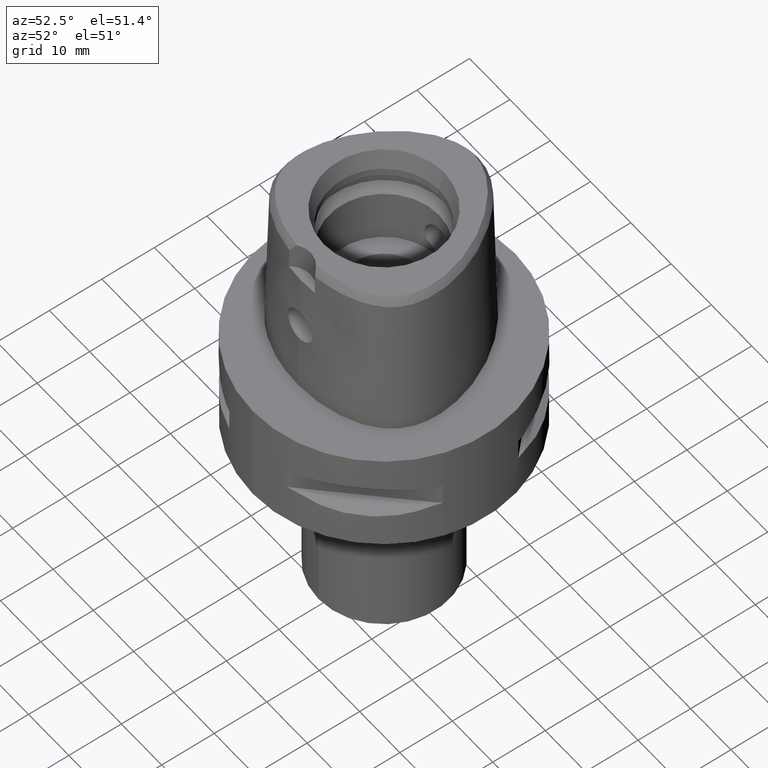
[diagram: clean part render]
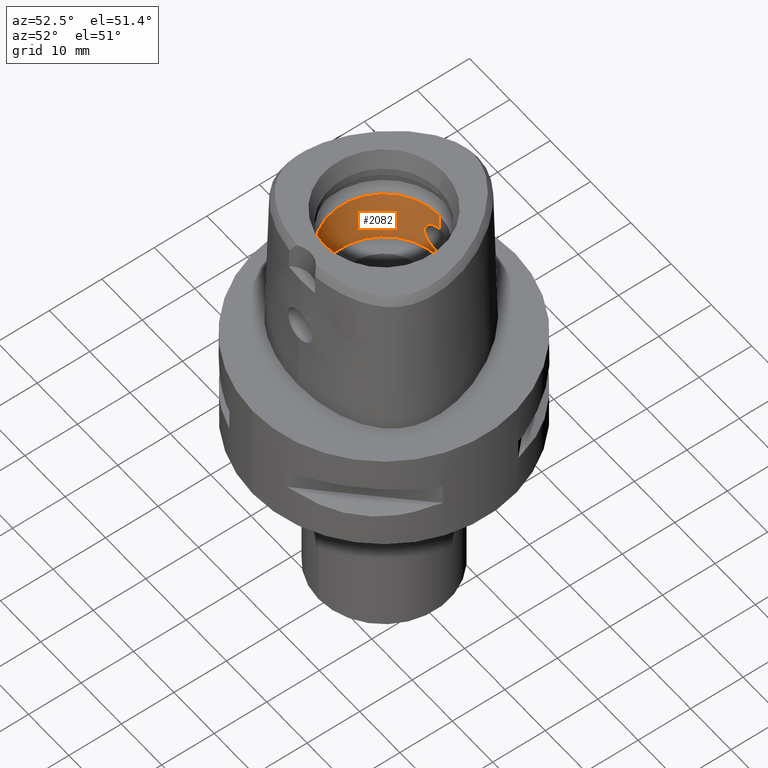
[diagram: same view with one face highlighted and labeled with its STEP entity id]
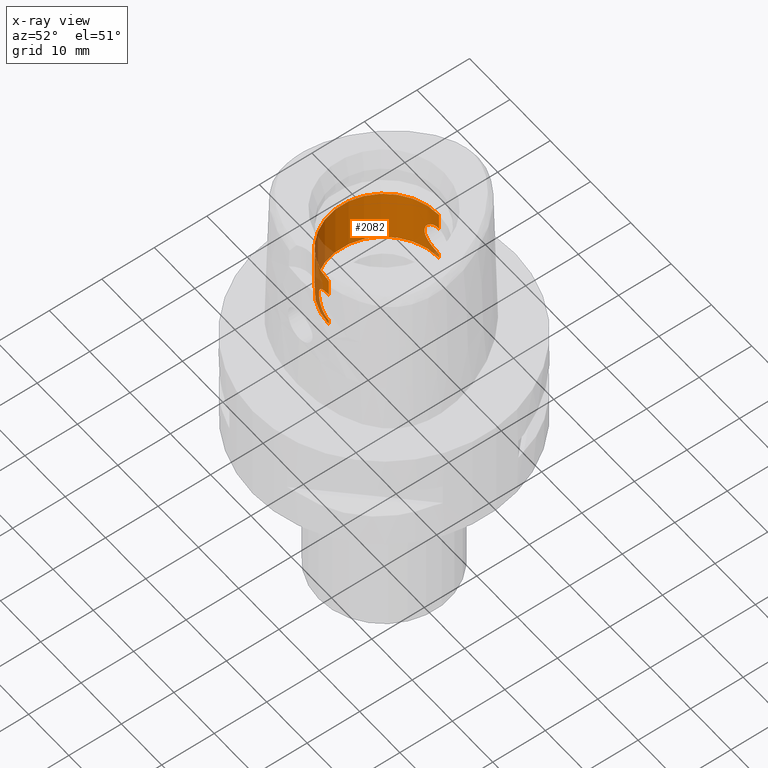
[diagram: x-ray of the same camera — body ghosted, the highlighted face saturated]
A machine part, auxiliary view. The second image highlights one B-rep face of the part: STEP entity #2082.
The next image is the same camera in x-ray: the body ghosted, the highlighted face saturated — about 11% of this face is hidden behind the body in this view.
In plain terms, the highlighted cylindrical surface (partial cylindrical patch) has radius 10.5 mm, axis along (0, 0, -1).
Its self-contained STEP definition (entity closure, byte-faithful):
#3 = CARTESIAN_POINT ( 'NONE',  ( -2.684273870985335986, -10.15195864715339802, 12.54945122235551125 ) ) ;
#30 = CARTESIAN_POINT ( 'NONE',  ( -2.892663343515185836, -10.09376140242067521, 14.96928986597794520 ) ) ;
#48 = CARTESIAN_POINT ( 'NONE',  ( -2.915525748083130697, -10.08721449241858004, 14.89706622754973253 ) ) ;
#70 = CARTESIAN_POINT ( 'NONE',  ( -2.225952381080567921, -10.26138731211384503, 16.08534015878506196 ) ) ;
#93 = CARTESIAN_POINT ( 'NONE',  ( -1.456012071754645421, 10.39810994055444660, 11.31857570852587358 ) ) ;
#101 = DIRECTION ( 'NONE',  ( 0.0000000000000000000, 0.0000000000000000000, -1.000000000000000000 ) ) ;
#115 = CARTESIAN_POINT ( 'NONE',  ( -2.056546944741850957, 10.29666187502723851, 16.25319287345646302 ) ) ;
#149 = ORIENTED_EDGE ( 'NONE', *, *, #4456, .F. ) ;
#201 = DIRECTION ( 'NONE',  ( 0.0000000000000000000, 0.0000000000000000000, 1.000000000000000000 ) ) ;
#216 = CARTESIAN_POINT ( 'NONE',  ( -1.105275461940272708, 10.44162784593458682, 16.84273724422178731 ) ) ;
#241 = CARTESIAN_POINT ( 'NONE',  ( -1.964279774045345706, 10.31445922619841049, 16.33406692924569370 ) ) ;
#270 = CARTESIAN_POINT ( 'NONE',  ( -2.708095606537817890, 10.14623527168673967, 12.58280299592427909 ) ) ;
#284 = ORIENTED_EDGE ( 'NONE', *, *, #3285, .T. ) ;
#328 = DIRECTION ( 'NONE',  ( 0.0000000000000000000, 0.0000000000000000000, 1.000000000000000000 ) ) ;
#363 = EDGE_CURVE ( 'NONE', #1139, #1223, #1788, .T. ) ;
#374 = CARTESIAN_POINT ( 'NONE',  ( -2.780929451129986241, -10.12520695583335595, 12.74729104128908297 ) ) ;
#398 = CARTESIAN_POINT ( 'NONE',  ( -1.172919099720751923, -10.43421154076973778, 16.81545390709915466 ) ) ;
#420 = CARTESIAN_POINT ( 'NONE',  ( -1.181153464950331911, -10.43328069739700759, 16.81200931892578510 ) ) ;
#441 = CARTESIAN_POINT ( 'NONE',  ( -2.809811383996468237, -10.11710176460692878, 12.81362283068346564 ) ) ;
#461 = CARTESIAN_POINT ( 'NONE',  ( -1.538922019475355008, 10.38604228523729667, 11.36469992290468056 ) ) ;
#463 = CARTESIAN_POINT ( 'NONE',  ( -2.846675885931348127, -10.10677677944793018, 15.09509080070503373 ) ) ;
#487 = CARTESIAN_POINT ( 'NONE',  ( -2.846602087479390253, 10.10679757081590857, 12.90471736839572081 ) ) ;
#511 = DIRECTION ( 'NONE',  ( 0.0000000000000000000, 1.000000000000000000, 0.0000000000000000000 ) ) ;
#531 = DIRECTION ( 'NONE',  ( 0.0000000000000000000, -1.000000000000000000, 0.0000000000000000000 ) ) ;
#559 = CARTESIAN_POINT ( 'NONE',  ( -1.279378724453281935, -10.42259964174019871, 11.22762073150358297 ) ) ;
#564 = AXIS2_PLACEMENT_3D ( 'NONE', #2407, #101, #2766 ) ;
#569 = FACE_OUTER_BOUND ( 'NONE', #1278, .T. ) ;
#579 = CARTESIAN_POINT ( 'NONE',  ( -2.780998949614430504, 10.12518807617360572, 15.25255471608938507 ) ) ;
#581 = DIRECTION ( 'NONE',  ( 0.0000000000000000000, 0.0000000000000000000, -1.000000000000000000 ) ) ;
#583 = CARTESIAN_POINT ( 'NONE',  ( -1.692405294285810546, -10.36221785919270566, 11.46062876547253495 ) ) ;
#600 = CARTESIAN_POINT ( 'NONE',  ( -3.034127993194745354, 10.05244008078223494, 13.63269152903868253 ) ) ;
#628 = CARTESIAN_POINT ( 'NONE',  ( -0.1858495358195028924, 10.50000000000000178, 17.05000000000000426 ) ) ;
#737 = CARTESIAN_POINT ( 'NONE',  ( 0.0000000000000000000, 10.50000000000000000, 17.05000000000000071 ) ) ;
#752 = CARTESIAN_POINT ( 'NONE',  ( -2.204592706791328016, -10.26598065842026841, 16.10794143929570765 ) ) ;
#792 = EDGE_CURVE ( 'NONE', #1670, #1148, #4640, .T. ) ;
#802 = CARTESIAN_POINT ( 'NONE',  ( -3.049378140335541332, -10.04754863259827324, 13.80405936455041171 ) ) ;
#822 = CARTESIAN_POINT ( 'NONE',  ( -2.204477518689910820, 10.26600544495524403, 11.89193818259084523 ) ) ;
#824 = CARTESIAN_POINT ( 'NONE',  ( -1.800158617137376238, -10.34500443447648266, 16.47068527536969995 ) ) ;
#829 = CARTESIAN_POINT ( 'NONE',  ( 0.0000000000000000000, -10.50000000000000000, 17.05000000000000071 ) ) ;
#845 = CARTESIAN_POINT ( 'NONE',  ( -2.349816740786623281, 10.23408308881572459, 12.05458284882629272 ) ) ;
#847 = CARTESIAN_POINT ( 'NONE',  ( -2.954680207953359172, -10.07604154423703235, 13.21771676435789367 ) ) ;
#874 = CARTESIAN_POINT ( 'NONE',  ( -1.302834613418593523, 10.41862899127401398, 11.24198199463796222 ) ) ;
#898 = CARTESIAN_POINT ( 'NONE',  ( 0.0000000000000000000, -10.50000000000000000, 10.94999999999999929 ) ) ;
#902 = DIRECTION ( 'NONE',  ( 0.0000000000000000000, 0.0000000000000000000, 1.000000000000000000 ) ) ;
#907 = EDGE_CURVE ( 'NONE', #1223, #2555, #2818, .T. ) ;
#979 = CARTESIAN_POINT ( 'NONE',  ( -1.063368221792931889, 10.44599833686672063, 16.85882790769428397 ) ) ;
#1000 = CARTESIAN_POINT ( 'NONE',  ( -2.101332103156799747, 10.28770260537483594, 16.21165340642846431 ) ) ;
#1049 = CARTESIAN_POINT ( 'NONE',  ( 0.0000000000000000000, -10.50000000000000000, 20.40000000000000213 ) ) ;
#1068 = VERTEX_POINT ( 'NONE', #3538 ) ;
#1125 = CARTESIAN_POINT ( 'NONE',  ( -3.031280128525303930, -10.05332210427071438, 13.60828202179935253 ) ) ;
#1139 = VERTEX_POINT ( 'NONE', #1389 ) ;
#1144 = CARTESIAN_POINT ( 'NONE',  ( -2.349916293469446860, -10.23406013784634361, 15.94529686807280910 ) ) ;
#1148 = VERTEX_POINT ( 'NONE', #2185 ) ;
#1163 = CARTESIAN_POINT ( 'NONE',  ( -0.3765717177538520644, -10.49999999999999645, 17.05000000000000071 ) ) ;
#1190 = CARTESIAN_POINT ( 'NONE',  ( -2.639873972684345649, -10.16387382276758977, 12.46911543568308112 ) ) ;
#1208 = CARTESIAN_POINT ( 'NONE',  ( -3.031301019161453780, 10.05331605589397448, 14.39155501958505390 ) ) ;
#1217 = CYLINDRICAL_SURFACE ( 'NONE', #564, 10.50000000000000000 ) ;
#1223 = VERTEX_POINT ( 'NONE', #829 ) ;
#1231 = CARTESIAN_POINT ( 'NONE',  ( -2.492383491375475657, 10.20096763433350873, 12.23823635763446482 ) ) ;
#1277 = CARTESIAN_POINT ( 'NONE',  ( -1.105220092079846284, -10.44163375783843151, 11.15724123430364578 ) ) ;
#1278 = EDGE_LOOP ( 'NONE', ( #149, #4246, #2913, #3274, #4512, #284, #2187, #3728 ) ) ;
#1326 = CARTESIAN_POINT ( 'NONE',  ( -2.896200294021661126, 10.09297322487315185, 14.97905627529126171 ) ) ;
#1349 = LINE ( 'NONE', #4284, #2628 ) ;
#1351 = CARTESIAN_POINT ( 'NONE',  ( -2.834891093780668392, 10.11009320629975505, 12.87486282578853114 ) ) ;
#1363 = B_SPLINE_CURVE_WITH_KNOTS ( 'NONE', 3,
 ( #4432, #628, #3530, #1950, #3045, #3224, #2292, #979, #216, #3754, #1702, #1371, #3552, #3430, #1737, #2679, #4493, #241, #115, #1000, #2466, #4616, #3810, #3200, #2070, #1555, #579, #3929, #2046, #3170, #4266, #2444, #2096, #1326, #1677, #1208, #4142, #1578, #600, #3406, #2708, #3783, #4650, #2809, #487, #3907, #1351, #3579, #2852, #270, #2832, #1231, #4285, #845, #1925, #4667, #2321, #822, #3068, #4167, #461, #93, #4516, #874, #2349, #4396, #2588, #2491, #4758, #2122, #1459, #1483, #4350 ),
 .UNSPECIFIED., .F., .F.,
 ( 4, 2, 2, 1, 1, 1, 2, 2, 2, 2, 2, 2, 2, 2, 2, 1, 1, 1, 2, 2, 2, 2, 2, 2, 1, 1, 1, 2, 2, 2, 2, 2, 2, 2, 2, 2, 2, 1, 1, 2, 2, 4 ),
 ( 0.0000000000000000000, 0.06249999999999510114, 0.09374999999999264477, 0.1093749999999914235, 0.1171874999999909794, 0.1210937499999907574, 0.1230468749999906464, 0.1249999999999905353, 0.1875000000000034972, 0.2187500000000099920, 0.2343750000000134892, 0.2500000000000169864, 0.3125000000000308642, 0.3437500000000375255, 0.3593750000000408562, 0.3671875000000422440, 0.3710937500000425215, 0.3730468750000426326, 0.3740234375000424105, 0.3750000000000421330, 0.4375000000000276446, 0.5000000000000131006, 0.5624999999999985567, 0.5937499999999913403, 0.6093749999999876765, 0.6171874999999855671, 0.6210937499999849010, 0.6230468749999844569, 0.6249999999999841238, 0.6874999999999834577, 0.7187499999999833467, 0.7343749999999832356, 0.7421874999999831246, 0.7499999999999830136, 0.8124999999999827915, 0.8437499999999827915, 0.8593749999999826805, 0.8671874999999826805, 0.8710937499999826805, 0.8730468749999829026, 0.8749999999999830136, 1.000000000000000000 ),
 .UNSPECIFIED. ) ;
#1371 = CARTESIAN_POINT ( 'NONE',  ( -1.142968579002704876, 10.43756783897918616, 16.82774516971084466 ) ) ;
#1389 = CARTESIAN_POINT ( 'NONE',  ( 0.0000000000000000000, -10.50000000000000000, 10.94999999999999929 ) ) ;
#1459 = CARTESIAN_POINT ( 'NONE',  ( -0.7764022866570564618, 10.47837665847388244, 11.02070152771540812 ) ) ;
#1470 = CARTESIAN_POINT ( 'NONE',  ( -2.804029235404124965, -10.11872136650691090, 12.79998046139980161 ) ) ;
#1483 = CARTESIAN_POINT ( 'NONE',  ( -0.3765564646010952643, 10.50000000000000178, 10.94999999999999929 ) ) ;
#1490 = CARTESIAN_POINT ( 'NONE',  ( -1.456064311620528073, -10.39810218278757326, 16.68139598706313009 ) ) ;
#1511 = CARTESIAN_POINT ( 'NONE',  ( -2.101228578943988623, -10.28772387848954573, 11.78824810961939562 ) ) ;
#1534 = CARTESIAN_POINT ( 'NONE',  ( -2.896144479331794752, -10.09298961028087760, 13.02077600036760963 ) ) ;
#1555 = CARTESIAN_POINT ( 'NONE',  ( -2.757688572005720040, 10.13171902664180379, 15.30347521573918534 ) ) ;
#1557 = CARTESIAN_POINT ( 'NONE',  ( -2.831792410213338052, -10.11096408904582766, 15.13290337306010613 ) ) ;
#1577 = CARTESIAN_POINT ( 'NONE',  ( -1.781647293763894968, -10.34743252364096833, 11.52178692218130607 ) ) ;
#1578 = CARTESIAN_POINT ( 'NONE',  ( -3.050579496421902181, 10.04719019360645405, 13.82374688555721498 ) ) ;
#1632 = CARTESIAN_POINT ( 'NONE',  ( -0.9070143053228508778, -10.46070026829730892, 11.08755224972813558 ) ) ;
#1670 = VERTEX_POINT ( 'NONE', #4344 ) ;
#1677 = CARTESIAN_POINT ( 'NONE',  ( -2.954723366597824530, 10.07602869749485741, 14.78211957462548121 ) ) ;
#1702 = CARTESIAN_POINT ( 'NONE',  ( -1.135161741994411111, 10.43841906629238458, 16.83089194383409293 ) ) ;
#1703 = AXIS2_PLACEMENT_3D ( 'NONE', #2785, #902, #511 ) ;
#1714 = DIRECTION ( 'NONE',  ( 0.0000000000000000000, 0.0000000000000000000, 1.000000000000000000 ) ) ;
#1737 = CARTESIAN_POINT ( 'NONE',  ( -1.692472663009719769, 10.36220651668209136, 16.53932658714942150 ) ) ;
#1758 = EDGE_CURVE ( 'NONE', #4191, #3109, #4039, .T. ) ;
#1788 = B_SPLINE_CURVE_WITH_KNOTS ( 'NONE', 3,
 ( #898, #2371, #3834, #2397, #2757, #1632, #2814, #4567, #1277, #4211, #2424, #3857, #559, #3429, #583, #1577, #2051, #3533, #2638, #1511, #2597, #3736, #1190, #3, #2962, #1857, #374, #3322, #1470, #441, #4410, #2273, #2216, #1534, #847, #1125, #802, #3345, #3364, #1904, #4071, #48, #30, #4098, #463, #3002, #3674, #1557, #3047, #3023, #4053, #4495, #3383, #1144, #2661, #3716, #70, #752, #4475, #824, #1882, #1490, #3693, #4120, #1927, #4451, #1836, #420, #398, #2294, #3408, #1163, #2984 ),
 .UNSPECIFIED., .F., .F.,
 ( 4, 2, 2, 1, 1, 1, 2, 2, 2, 2, 2, 2, 2, 2, 2, 1, 1, 1, 2, 2, 2, 2, 2, 2, 1, 1, 1, 2, 2, 2, 2, 2, 2, 2, 2, 2, 2, 1, 1, 2, 2, 4 ),
 ( 0.0000000000000000000, 0.06249999999999457378, 0.09374999999999181211, 0.1093749999999904660, 0.1171874999999897027, 0.1210937499999893141, 0.1230468749999892586, 0.1249999999999892031, 0.1874999999999883704, 0.2187499999999879818, 0.2343749999999875933, 0.2499999999999872324, 0.3124999999999859002, 0.3437499999999851785, 0.3593749999999848455, 0.3671874999999847899, 0.3710937499999850675, 0.3730468749999851785, 0.3740234374999852340, 0.3749999999999852895, 0.4374999999999887867, 0.4999999999999922284, 0.5624999999999956701, 0.5937499999999974465, 0.6093749999999984457, 0.6171874999999993339, 0.6210937499999995559, 0.6230468750000000000, 0.6250000000000003331, 0.6875000000000042188, 0.7187500000000061062, 0.7343750000000071054, 0.7421875000000072164, 0.7500000000000072164, 0.8125000000000072164, 0.8437500000000071054, 0.8593750000000073275, 0.8671875000000074385, 0.8710937500000072164, 0.8730468750000073275, 0.8750000000000075495, 1.000000000000000000 ),
 .UNSPECIFIED. ) ;
#1836 = CARTESIAN_POINT ( 'NONE',  ( -1.193581545972662195, -10.43186559282252190, 16.80677856584921770 ) ) ;
#1857 = CARTESIAN_POINT ( 'NONE',  ( -2.757620559869211618, -10.13173732089640566, 12.69638109964089345 ) ) ;
#1882 = CARTESIAN_POINT ( 'NONE',  ( -1.538977923302190076, -10.38603347469516969, 16.63526775599447305 ) ) ;
#1904 = CARTESIAN_POINT ( 'NONE',  ( -2.980254012824899768, -10.06844442467550849, 14.65587537912753646 ) ) ;
#1925 = CARTESIAN_POINT ( 'NONE',  ( -2.289531751188468078, 10.24750750704935598, 11.98468587755150949 ) ) ;
#1927 = CARTESIAN_POINT ( 'NONE',  ( -1.249319580917084949, -10.42526248511483011, 16.78246040569112552 ) ) ;
#1950 = CARTESIAN_POINT ( 'NONE',  ( -0.6656999691549065901, 10.47903802007259877, 16.97807790734272970 ) ) ;
#2019 = VECTOR ( 'NONE', #328, 1000.000000000000000 ) ;
#2046 = CARTESIAN_POINT ( 'NONE',  ( -2.804100611947927035, 10.11870175071666900, 15.19985276759124204 ) ) ;
#2051 = CARTESIAN_POINT ( 'NONE',  ( -1.918224794152140422, -10.32299703777817435, 11.62803026500928105 ) ) ;
#2070 = CARTESIAN_POINT ( 'NONE',  ( -2.740640197733970496, 10.13647392698816496, 15.33907476816065518 ) ) ;
#2082 = ADVANCED_FACE ( 'NONE', ( #569 ), #1217, .F. ) ;
#2096 = CARTESIAN_POINT ( 'NONE',  ( -2.814259360980289948, 10.11585803279736240, 15.17577846467583846 ) ) ;
#2122 = CARTESIAN_POINT ( 'NONE',  ( -1.170772073513500766, 10.43445424599896043, 11.18364848650615961 ) ) ;
#2185 = CARTESIAN_POINT ( 'NONE',  ( 0.0000000000000000000, 10.50000000000000000, 10.00000000000000000 ) ) ;
#2187 = ORIENTED_EDGE ( 'NONE', *, *, #907, .F. ) ;
#2216 = CARTESIAN_POINT ( 'NONE',  ( -2.814186587720505894, -10.11587815382454103, 12.82404736506404319 ) ) ;
#2273 = CARTESIAN_POINT ( 'NONE',  ( -2.813852684108442581, -10.11597153519743486, 12.82325133825336749 ) ) ;
#2292 = CARTESIAN_POINT ( 'NONE',  ( -0.9793463763415096723, 10.45430943437699867, 16.88927753590976977 ) ) ;
#2294 = CARTESIAN_POINT ( 'NONE',  ( -1.170829015503853432, -10.43444774821693244, 16.81632784266719938 ) ) ;
#2321 = CARTESIAN_POINT ( 'NONE',  ( -2.225843307446227826, 10.26141103137955035, 11.91454340814288670 ) ) ;
#2349 = CARTESIAN_POINT ( 'NONE',  ( -1.249267327533839511, 10.42526889281872648, 11.21751613098797584 ) ) ;
#2371 = CARTESIAN_POINT ( 'NONE',  ( -0.1858412545484186273, -10.49999999999999645, 10.95000000000000107 ) ) ;
#2397 = CARTESIAN_POINT ( 'NONE',  ( -0.6656675948051492542, -10.47904014309189691, 11.02191502640653731 ) ) ;
#2402 = LINE ( 'NONE', #3861, #3849 ) ;
#2407 = CARTESIAN_POINT ( 'NONE',  ( 0.0000000000000000000, 1.610410540878999754E-14, 31.50000000000000000 ) ) ;
#2424 = CARTESIAN_POINT ( 'NONE',  ( -1.135104815400592493, -10.43842530317988526, 11.16908523066495285 ) ) ;
#2444 = CARTESIAN_POINT ( 'NONE',  ( -2.813925029782076592, 10.11595153750572607, 15.17657565405383480 ) ) ;
#2445 = EDGE_CURVE ( 'NONE', #4191, #1068, #1363, .T. ) ;
#2465 = DIRECTION ( 'NONE',  ( 0.0000000000000000000, 0.0000000000000000000, 1.000000000000000000 ) ) ;
#2466 = CARTESIAN_POINT ( 'NONE',  ( -2.339542419764308878, 10.23786743475116623, 15.97513534546554581 ) ) ;
#2491 = CARTESIAN_POINT ( 'NONE',  ( -1.181097952277838425, 10.43328709041885816, 11.18796736382992307 ) ) ;
#2555 = VERTEX_POINT ( 'NONE', #1049 ) ;
#2588 = CARTESIAN_POINT ( 'NONE',  ( -1.193526805224875975, 10.43187196596440103, 11.19319815367065374 ) ) ;
#2597 = CARTESIAN_POINT ( 'NONE',  ( -2.339464645284514699, -10.23788580072411492, 12.02477023548297019 ) ) ;
#2628 = VECTOR ( 'NONE', #2465, 1000.000000000000000 ) ;
#2638 = CARTESIAN_POINT ( 'NONE',  ( -2.056455151518894464, -10.29668031646938076, 11.74672352308262901 ) ) ;
#2661 = CARTESIAN_POINT ( 'NONE',  ( -2.289635827293746484, -10.24748418737886091, 16.01519587166723113 ) ) ;
#2679 = CARTESIAN_POINT ( 'NONE',  ( -1.781720119014823078, 10.34741970579349690, 16.47816121861223237 ) ) ;
#2708 = CARTESIAN_POINT ( 'NONE',  ( -2.957378055860373500, 10.07515224222476746, 13.24734561949049372 ) ) ;
#2757 = CARTESIAN_POINT ( 'NONE',  ( -0.7623122907947026405, -10.47249018780811980, 11.04509097199269085 ) ) ;
#2766 = DIRECTION ( 'NONE',  ( 0.0000000000000000000, -1.000000000000000000, 0.0000000000000000000 ) ) ;
#2785 = CARTESIAN_POINT ( 'NONE',  ( 0.0000000000000000000, 1.483659597167000164E-14, 20.40000000000000213 ) ) ;
#2797 = CIRCLE ( 'NONE', #1703, 10.50000000000000000 ) ;
#2809 = CARTESIAN_POINT ( 'NONE',  ( -2.862508100492308305, 10.10230983340102462, 12.94658128142018683 ) ) ;
#2814 = CARTESIAN_POINT ( 'NONE',  ( -0.9792975940055320683, -10.45431406189562473, 11.11070602149951192 ) ) ;
#2818 = LINE ( 'NONE', #3127, #2881 ) ;
#2832 = CARTESIAN_POINT ( 'NONE',  ( -2.552487852101097854, 10.18613468904005082, 12.32750543932005627 ) ) ;
#2852 = CARTESIAN_POINT ( 'NONE',  ( -2.779084437913577066, 10.12576821815395611, 12.73590744528526386 ) ) ;
#2881 = VECTOR ( 'NONE', #1714, 1000.000000000000000 ) ;
#2913 = ORIENTED_EDGE ( 'NONE', *, *, #4732, .T. ) ;
#2962 = CARTESIAN_POINT ( 'NONE',  ( -2.740572987370304858, -10.13649190037970627, 12.66078784593652884 ) ) ;
#2966 = AXIS2_PLACEMENT_3D ( 'NONE', #3482, #581, #531 ) ;
#2984 = CARTESIAN_POINT ( 'NONE',  ( 0.0000000000000000000, -10.50000000000000000, 17.05000000000000071 ) ) ;
#3002 = CARTESIAN_POINT ( 'NONE',  ( -2.839675536521829358, -10.10874742506065260, 15.11300674655580956 ) ) ;
#3023 = CARTESIAN_POINT ( 'NONE',  ( -2.708174650419983731, -10.14621400984704636, 15.41704703544539790 ) ) ;
#3045 = CARTESIAN_POINT ( 'NONE',  ( -0.7623497001491645886, 10.47248740134529044, 16.95489957053189656 ) ) ;
#3047 = CARTESIAN_POINT ( 'NONE',  ( -2.779161887925261532, -10.12574695090607513, 15.26392476323951541 ) ) ;
#3068 = CARTESIAN_POINT ( 'NONE',  ( -1.991501888039264534, 10.31123896899255321, 11.67411336447715442 ) ) ;
#3108 = CARTESIAN_POINT ( 'NONE',  ( 0.0000000000000000000, 10.50000000000000000, 17.05000000000000071 ) ) ;
#3109 = VERTEX_POINT ( 'NONE', #3138 ) ;
#3127 = CARTESIAN_POINT ( 'NONE',  ( 0.0000000000000000000, -10.50000000000000000, 17.05000000000000071 ) ) ;
#3138 = CARTESIAN_POINT ( 'NONE',  ( 0.0000000000000000000, 10.50000000000000000, 20.40000000000000213 ) ) ;
#3170 = CARTESIAN_POINT ( 'NONE',  ( -2.809883319563843518, 10.11708192872945133, 15.18620678931387324 ) ) ;
#3200 = CARTESIAN_POINT ( 'NONE',  ( -2.684339386311263453, 10.15194142812996780, 15.45042813394435122 ) ) ;
#3224 = CARTESIAN_POINT ( 'NONE',  ( -0.9070592927227384417, 10.46069628763612691, 16.91243378874046144 ) ) ;
#3274 = ORIENTED_EDGE ( 'NONE', *, *, #2445, .F. ) ;
#3285 = EDGE_CURVE ( 'NONE', #3109, #2555, #2797, .T. ) ;
#3322 = CARTESIAN_POINT ( 'NONE',  ( -2.792017941465337216, -10.12209214934230950, 12.77212670338296974 ) ) ;
#3345 = CARTESIAN_POINT ( 'NONE',  ( -3.050589520511229225, -10.04718677237465485, 14.17607768945471314 ) ) ;
#3364 = CARTESIAN_POINT ( 'NONE',  ( -3.034149198842697182, -10.05243333665793770, 14.36713024225834090 ) ) ;
#3383 = CARTESIAN_POINT ( 'NONE',  ( -2.387418198861795293, -10.22549403165331228, 15.89896182037786865 ) ) ;
#3406 = CARTESIAN_POINT ( 'NONE',  ( -2.980213758682153102, 10.06845650293988648, 13.34394131318641286 ) ) ;
#3408 = CARTESIAN_POINT ( 'NONE',  ( -0.7764384810416893323, -10.47837451487568750, 16.97929264878854738 ) ) ;
#3429 = CARTESIAN_POINT ( 'NONE',  ( -1.435609178738717073, -10.40205890077751150, 11.30146445763449670 ) ) ;
#3430 = CARTESIAN_POINT ( 'NONE',  ( -1.435664170989824351, 10.40205113892401734, 16.69850723791742553 ) ) ;
#3482 = CARTESIAN_POINT ( 'NONE',  ( 0.0000000000000000000, 1.610410540878999754E-14, 10.00000000000000000 ) ) ;
#3530 = CARTESIAN_POINT ( 'NONE',  ( -0.3768620317867236724, 10.49475950501815014, 17.03296767103448417 ) ) ;
#3533 = CARTESIAN_POINT ( 'NONE',  ( -1.964194535964821409, -10.31447562873470858, 11.66586150870955230 ) ) ;
#3538 = CARTESIAN_POINT ( 'NONE',  ( 0.0000000000000000000, 10.50000000000000000, 10.94999999999999929 ) ) ;
#3552 = CARTESIAN_POINT ( 'NONE',  ( -1.279430959030895210, 10.42259313985348612, 16.77235492846457987 ) ) ;
#3579 = CARTESIAN_POINT ( 'NONE',  ( -2.831715023282973309, 10.11098576967297902, 12.86690321331861853 ) ) ;
#3674 = CARTESIAN_POINT ( 'NONE',  ( -2.834967450080368767, -10.11007178937746076, 15.12494476645927222 ) ) ;
#3693 = CARTESIAN_POINT ( 'NONE',  ( -1.340131970138091821, -10.41379378695543956, 16.74015022076657289 ) ) ;
#3716 = CARTESIAN_POINT ( 'NONE',  ( -2.268871255161120537, -10.25205468559685862, 16.03856096503968942 ) ) ;
#3728 = ORIENTED_EDGE ( 'NONE', *, *, #363, .F. ) ;
#3736 = CARTESIAN_POINT ( 'NONE',  ( -2.480600846744924759, -10.20443138290535323, 12.21414222212167289 ) ) ;
#3754 = CARTESIAN_POINT ( 'NONE',  ( -1.123210743380702370, 10.43970871935432321, 16.83565495152473090 ) ) ;
#3783 = CARTESIAN_POINT ( 'NONE',  ( -2.915467944372327924, 10.08723124900057933, 13.10274582152906220 ) ) ;
#3810 = CARTESIAN_POINT ( 'NONE',  ( -2.639939291716238756, 10.16385682902810572, 15.53077219440113943 ) ) ;
#3834 = CARTESIAN_POINT ( 'NONE',  ( -0.3768444083452630045, -10.49476003577297512, 10.96703080814093667 ) ) ;
#3849 = VECTOR ( 'NONE', #201, 1000.000000000000000 ) ;
#3857 = CARTESIAN_POINT ( 'NONE',  ( -1.142910865309192836, -10.43757420388618584, 11.17223150299766843 ) ) ;
#3861 = CARTESIAN_POINT ( 'NONE',  ( 0.0000000000000000000, -10.50000000000000000, 10.00000000000000000 ) ) ;
#3907 = CARTESIAN_POINT ( 'NONE',  ( -2.839600206041904773, 10.10876859148794438, 12.88680107607117264 ) ) ;
#3929 = CARTESIAN_POINT ( 'NONE',  ( -2.792088254429705430, 10.12207295095232951, 15.22771349777145211 ) ) ;
#4039 = LINE ( 'NONE', #737, #2019 ) ;
#4053 = CARTESIAN_POINT ( 'NONE',  ( -2.552574390891998668, -10.18611284214593127, 15.67236271138256676 ) ) ;
#4071 = CARTESIAN_POINT ( 'NONE',  ( -2.957425038607825130, -10.07513832761347139, 14.75246924083283062 ) ) ;
#4098 = CARTESIAN_POINT ( 'NONE',  ( -2.862578370685246565, -10.10228991238898111, 15.05322770174976021 ) ) ;
#4120 = CARTESIAN_POINT ( 'NONE',  ( -1.302885544232772252, -10.41862241201626915, 16.75799393701944595 ) ) ;
#4142 = CARTESIAN_POINT ( 'NONE',  ( -3.049389285406387984, 10.04754587444685576, 14.19576876765512274 ) ) ;
#4167 = CARTESIAN_POINT ( 'NONE',  ( -1.800085483636938655, 10.34501763939950436, 11.52926282962791404 ) ) ;
#4191 = VERTEX_POINT ( 'NONE', #3108 ) ;
#4211 = CARTESIAN_POINT ( 'NONE',  ( -1.123154439024253382, -10.43971482562638364, 11.16432274768706812 ) ) ;
#4246 = ORIENTED_EDGE ( 'NONE', *, *, #792, .T. ) ;
#4266 = CARTESIAN_POINT ( 'NONE',  ( -2.812314565300250813, 10.11640181462005472, 15.18041989509933742 ) ) ;
#4284 = CARTESIAN_POINT ( 'NONE',  ( 0.0000000000000000000, 10.50000000000000000, 10.00000000000000000 ) ) ;
#4285 = CARTESIAN_POINT ( 'NONE',  ( -2.387321292436756170, 10.22551676153723221, 12.10091635345132133 ) ) ;
#4344 = CARTESIAN_POINT ( 'NONE',  ( 0.0000000000000000000, -10.50000000000000000, 10.00000000000000000 ) ) ;
#4350 = CARTESIAN_POINT ( 'NONE',  ( 0.0000000000000000000, 10.50000000000000000, 10.94999999999999929 ) ) ;
#4396 = CARTESIAN_POINT ( 'NONE',  ( -1.223058670141840221, 10.42843816609463303, 11.20585812279233018 ) ) ;
#4410 = CARTESIAN_POINT ( 'NONE',  ( -2.812242384425724051, -10.11642174726072518, 12.81940815180423066 ) ) ;
#4432 = CARTESIAN_POINT ( 'NONE',  ( 0.0000000000000000000, 10.50000000000000000, 17.05000000000000071 ) ) ;
#4451 = CARTESIAN_POINT ( 'NONE',  ( -1.223111851054947907, -10.42843180554094218, 16.79411858941299585 ) ) ;
#4456 = EDGE_CURVE ( 'NONE', #1670, #1139, #2402, .T. ) ;
#4475 = CARTESIAN_POINT ( 'NONE',  ( -1.991595337084050010, -10.31122118640871932, 16.32581154243185395 ) ) ;
#4493 = CARTESIAN_POINT ( 'NONE',  ( -1.918306806886340921, 10.32298158424867118, 16.37190353864517078 ) ) ;
#4495 = CARTESIAN_POINT ( 'NONE',  ( -2.492473414948472410, -10.20094549356014468, 15.76163642157297673 ) ) ;
#4512 = ORIENTED_EDGE ( 'NONE', *, *, #1758, .T. ) ;
#4516 = CARTESIAN_POINT ( 'NONE',  ( -1.340081210041178306, 10.41380058358702065, 11.25982496973363922 ) ) ;
#4567 = CARTESIAN_POINT ( 'NONE',  ( -1.063315039743909063, -10.44600380612932966, 11.14115233518344006 ) ) ;
#4616 = CARTESIAN_POINT ( 'NONE',  ( -2.480670063464931907, 10.20441423213330623, 15.78576256445937709 ) ) ;
#4640 = CIRCLE ( 'NONE', #2966, 10.50000000000000000 ) ;
#4650 = CARTESIAN_POINT ( 'NONE',  ( -2.892599947535637650, 10.09377960185060630, 13.03052076233586298 ) ) ;
#4667 = CARTESIAN_POINT ( 'NONE',  ( -2.268765578909061720, 10.25207813434654369, 11.96132141479318634 ) ) ;
#4732 = EDGE_CURVE ( 'NONE', #1148, #1068, #1349, .T. ) ;
#4758 = CARTESIAN_POINT ( 'NONE',  ( -1.172863049335789443, 10.43421795026378440, 11.18452274254198109 ) ) ;